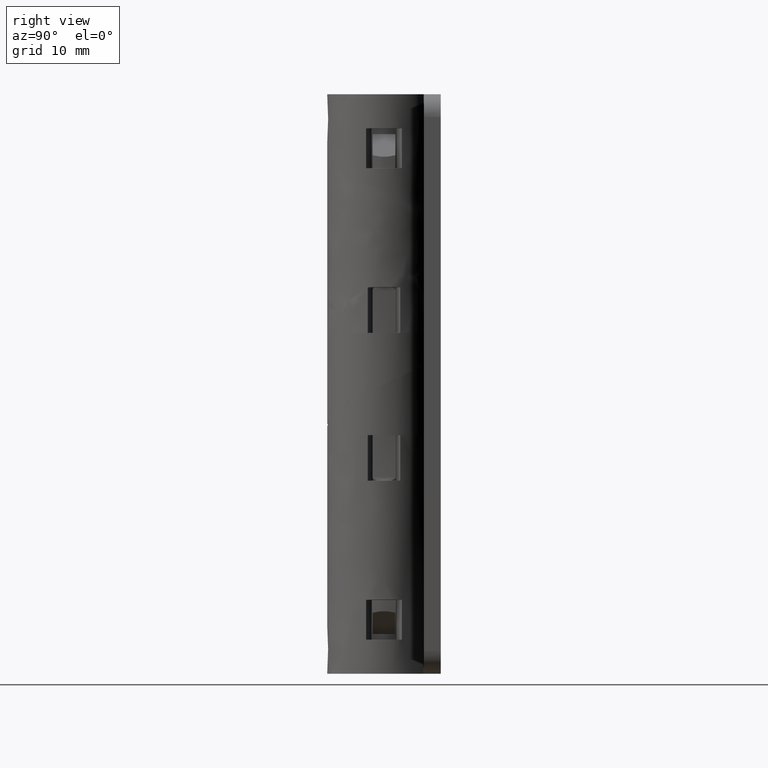
[diagram: clean part render]
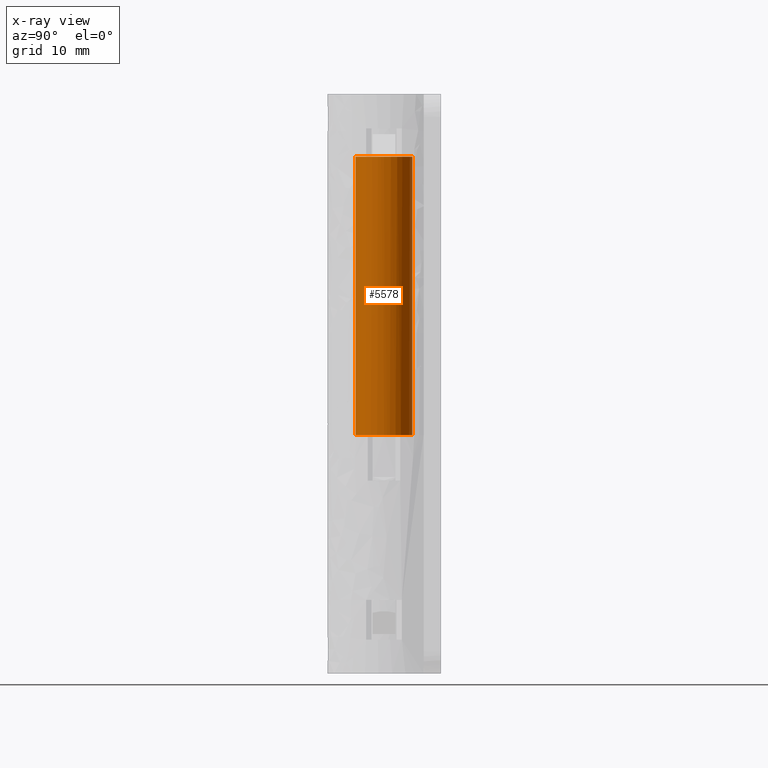
[diagram: x-ray — body ghosted, one internal face saturated and labeled with its STEP entity id]
A machine part, right view, then the same camera in x-ray: the body is ghosted and one INTERNAL B-rep face — a face not visible from any outside direction — is saturated and labeled: STEP entity #5578.
In plain terms, the highlighted face is a freeform B-spline surface patch.
Its self-contained STEP definition (entity closure, byte-faithful):
#5445=CARTESIAN_POINT('',(2.499999806146967,0.0,45.500001011494433));
#5446=VERTEX_POINT('',#5445);
#5447=CARTESIAN_POINT('',(0.021816145064881,2.499904807658927,45.500001000100411));
#5448=VERTEX_POINT('',#5447);
#5449=CARTESIAN_POINT('',(2.499999806146967,0.0,45.500001011494433));
#5450=CARTESIAN_POINT('',(2.499999806146968,2.478278026316948,45.500001011494419));
#5451=CARTESIAN_POINT('',(0.021816145064882,2.499904807658928,45.500001000100397));
#5459=(BOUNDED_CURVE()B_SPLINE_CURVE(2,(#5449,#5450,#5451),.UNSPECIFIED.,.F.,.U.)B_SPLINE_CURVE_WITH_KNOTS((3,3),(0.0,0.248460105652895),.UNSPECIFIED.)CURVE()GEOMETRIC_REPRESENTATION_ITEM()RATIONAL_B_SPLINE_CURVE((1.0,0.708910879634372,0.996414028072362))REPRESENTATION_ITEM(''));
#5460=EDGE_CURVE('',#5446,#5448,#5459,.T.);
#5479=CARTESIAN_POINT('',(-0.021816532770948,-2.499904807658927,45.500000999899790));
#5480=VERTEX_POINT('',#5479);
#5494=CARTESIAN_POINT('',(-0.021816532770947,-2.499904807658928,45.500000999899790));
#5495=CARTESIAN_POINT('',(-0.010908570990782,-2.500000000000000,45.500000999949940));
#5496=CARTESIAN_POINT('',(-0.000000193853033,-2.500000000000000,45.500001000000097));
#5497=CARTESIAN_POINT('',(2.499999806146967,-2.500000000000000,45.500001011494419));
#5498=CARTESIAN_POINT('',(2.499999806146967,0.0,45.500001011494433));
#5506=(BOUNDED_CURVE()B_SPLINE_CURVE(2,(#5494,#5495,#5496,#5497,#5498),.UNSPECIFIED.,.F.,.U.)B_SPLINE_CURVE_WITH_KNOTS((3,2,3),(0.748460105652895,0.750000000000000,1.0),.UNSPECIFIED.)CURVE()GEOMETRIC_REPRESENTATION_ITEM()RATIONAL_B_SPLINE_CURVE((0.996414028072362,0.998195901552175,1.0,0.707106781186548,1.0))REPRESENTATION_ITEM(''));
#5507=EDGE_CURVE('',#5480,#5446,#5506,.T.);
#5512=CARTESIAN_POINT('',(0.021816142076791,2.499904807660427,46.112501000100423));
#5513=CARTESIAN_POINT('',(2.521720949737218,2.478088468914493,46.112501011594311));
#5514=CARTESIAN_POINT('',(2.499904610991283,-0.021816338745935,46.112501011493997));
#5515=CARTESIAN_POINT('',(2.478088272245348,-2.521721146406362,46.112501011393690));
#5516=CARTESIAN_POINT('',(-0.021816535415079,-2.499904807660427,46.112500999899801));
#5517=CARTESIAN_POINT('',(0.021816260423870,2.499904807660427,20.372188500100300));
#5518=CARTESIAN_POINT('',(2.521721068084297,2.478088468914493,20.372188511594203));
#5519=CARTESIAN_POINT('',(2.499904729338363,-0.021816338745935,20.372188511493889));
#5520=CARTESIAN_POINT('',(2.478088390592428,-2.521721146406362,20.372188511393581));
#5521=CARTESIAN_POINT('',(-0.021816417067999,-2.499904807660427,20.372188499899689));
#5529=(BOUNDED_SURFACE()B_SPLINE_SURFACE(2,1,((#5512,#5517),(#5513,#5518),(#5514,#5519),(#5515,#5520),(#5516,#5521)),.UNSPECIFIED.,.F.,.F.,.U.)B_SPLINE_SURFACE_WITH_KNOTS((3,2,3),(2,2),(0.0,4.142135623730950,8.284271247461900),(0.0,25.740312500000119),.UNSPECIFIED.)GEOMETRIC_REPRESENTATION_ITEM()RATIONAL_B_SPLINE_SURFACE(((1.0,1.0),(0.707106781186548,0.707106781186548),(1.0,1.0),(0.707106781186548,0.707106781186548),(1.0,1.0)))REPRESENTATION_ITEM('')SURFACE());
#5530=ORIENTED_EDGE('',*,*,#5460,.F.);
#5531=ORIENTED_EDGE('',*,*,#5507,.F.);
#5532=CARTESIAN_POINT('',(-0.021816420143617,-2.499904807658778,21.000000999899701));
#5533=VERTEX_POINT('',#5532);
#5534=CARTESIAN_POINT('',(-0.021816532770948,-2.499904807658927,45.500000999899790));
#5535=CARTESIAN_POINT('',(-0.021816420143617,-2.499904807658778,21.000000999899701));
#5536=QUASI_UNIFORM_CURVE('',1,(#5534,#5535),.UNSPECIFIED.,.F.,.U.);
#5537=EDGE_CURVE('',#5480,#5533,#5536,.T.);
#5538=ORIENTED_EDGE('',*,*,#5537,.T.);
#5539=CARTESIAN_POINT('',(2.499999918791421,0.0,21.000001011494330));
#5540=VERTEX_POINT('',#5539);
#5541=CARTESIAN_POINT('',(2.499999918791421,0.0,21.000001011494330));
#5542=CARTESIAN_POINT('',(2.499999918791421,-2.500000000000000,21.000001011494330));
#5543=CARTESIAN_POINT('',(-0.000000081208579,-2.500000000000000,21.000001000000001));
#5544=CARTESIAN_POINT('',(-0.010908458354890,-2.500000000000000,21.000000999949851));
#5545=CARTESIAN_POINT('',(-0.021816420143618,-2.499904807658778,21.000000999899701));
#5553=(BOUNDED_CURVE()B_SPLINE_CURVE(2,(#5541,#5542,#5543,#5544,#5545),.UNSPECIFIED.,.F.,.U.)B_SPLINE_CURVE_WITH_KNOTS((3,2,3),(0.500000000000000,0.750000000000000,0.751539894348311),.UNSPECIFIED.)CURVE()GEOMETRIC_REPRESENTATION_ITEM()RATIONAL_B_SPLINE_CURVE((1.0,0.707106781186548,1.0,0.998195901550762,0.996414028069570))REPRESENTATION_ITEM(''));
#5554=EDGE_CURVE('',#5540,#5533,#5553,.T.);
#5555=ORIENTED_EDGE('',*,*,#5554,.F.);
#5556=CARTESIAN_POINT('',(0.021816257726459,2.499904807658777,21.000001000100308));
#5557=VERTEX_POINT('',#5556);
#5558=CARTESIAN_POINT('',(0.021816257726459,2.499904807658778,21.000001000100305));
#5559=CARTESIAN_POINT('',(2.499999918791421,2.478278026299972,21.000001011494337));
#5560=CARTESIAN_POINT('',(2.499999918791421,0.0,21.000001011494330));
#5568=(BOUNDED_CURVE()B_SPLINE_CURVE(2,(#5558,#5559,#5560),.UNSPECIFIED.,.F.,.U.)B_SPLINE_CURVE_WITH_KNOTS((3,3),(0.251539894348311,0.500000000000000),.UNSPECIFIED.)CURVE()GEOMETRIC_REPRESENTATION_ITEM()RATIONAL_B_SPLINE_CURVE((0.996414028069570,0.708910879635786,1.0))REPRESENTATION_ITEM(''));
#5569=EDGE_CURVE('',#5557,#5540,#5568,.T.);
#5570=ORIENTED_EDGE('',*,*,#5569,.F.);
#5571=CARTESIAN_POINT('',(0.021816145064881,2.499904807658927,45.500001000100411));
#5572=CARTESIAN_POINT('',(0.021816257726459,2.499904807658777,21.000001000100308));
#5573=QUASI_UNIFORM_CURVE('',1,(#5571,#5572),.UNSPECIFIED.,.F.,.U.);
#5574=EDGE_CURVE('',#5448,#5557,#5573,.T.);
#5575=ORIENTED_EDGE('',*,*,#5574,.F.);
#5576=EDGE_LOOP('',(#5530,#5531,#5538,#5555,#5570,#5575));
#5577=FACE_OUTER_BOUND('',#5576,.T.);
#5578=ADVANCED_FACE('',(#5577),#5529,.T.);